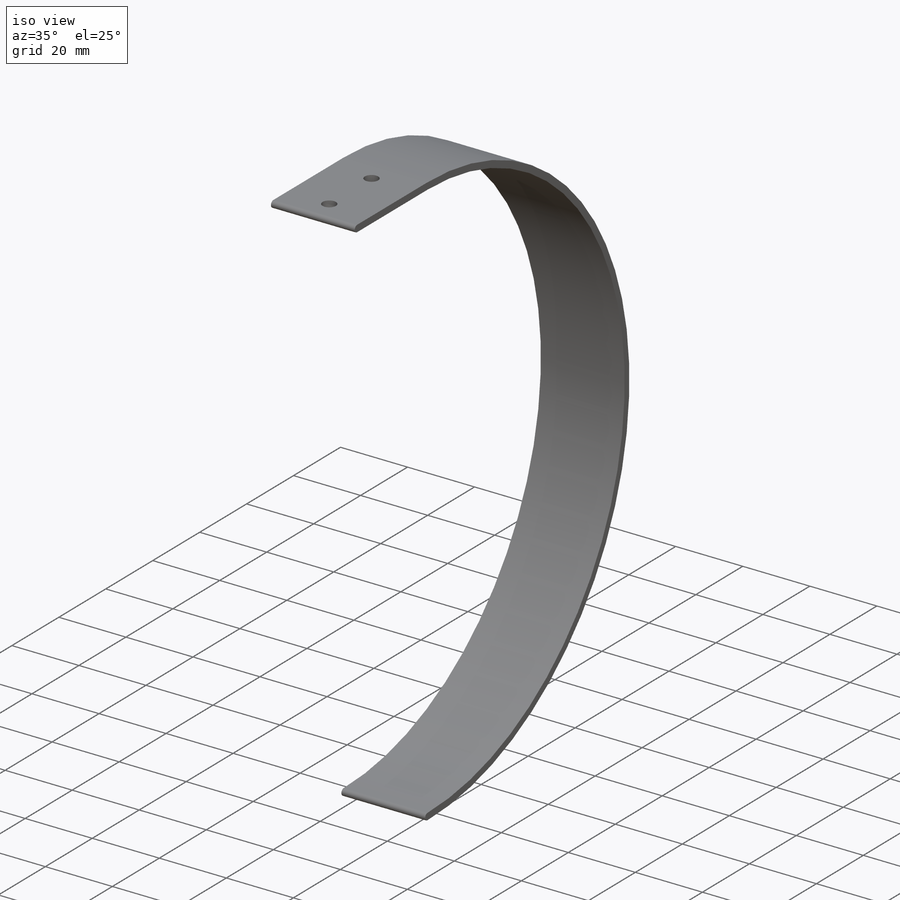
[diagram: iso view]
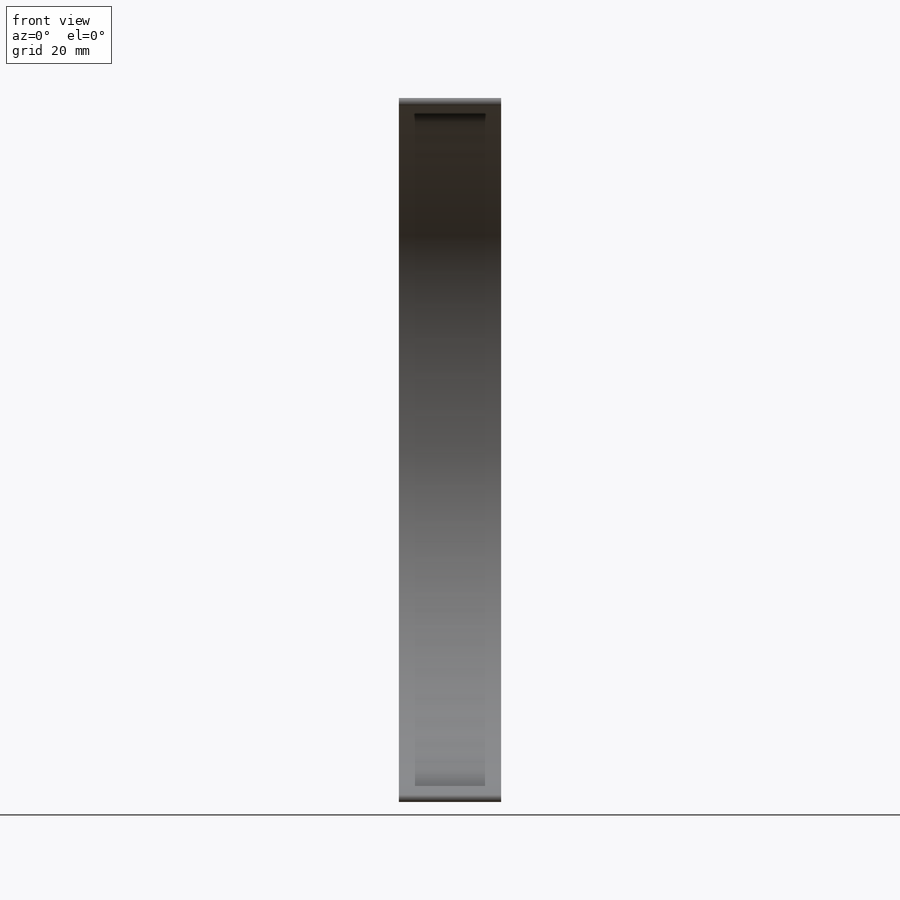
[diagram: front view]
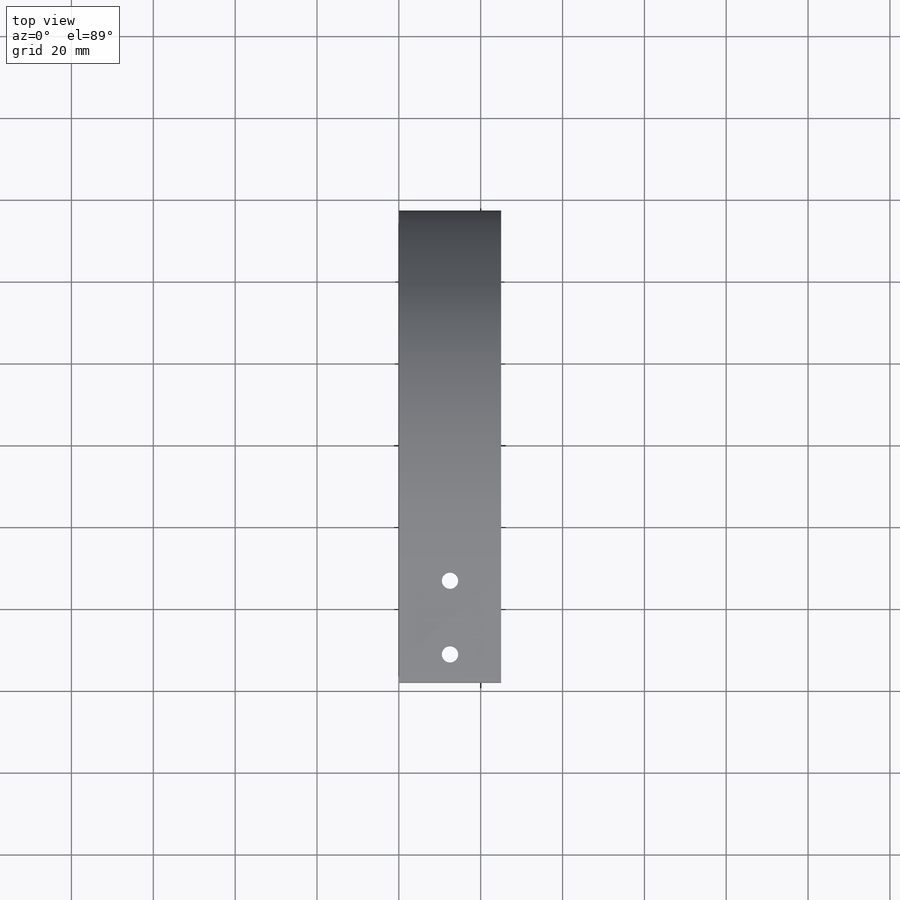
[diagram: top view]
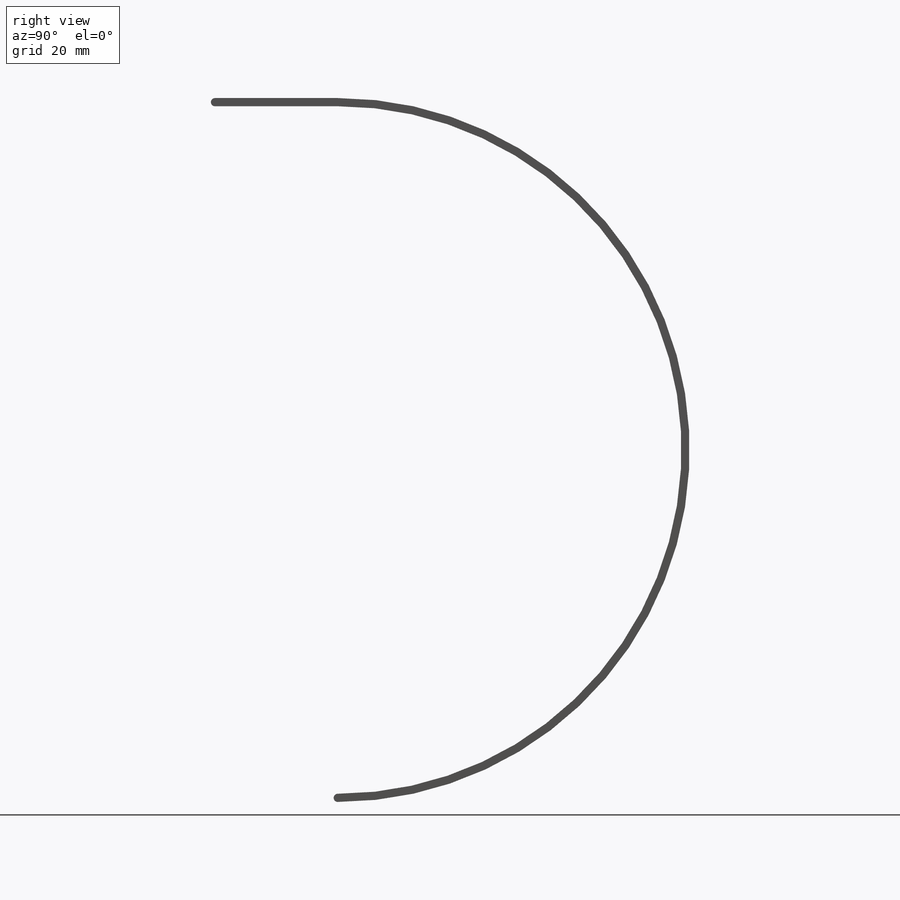
[diagram: right view]
SOLIDWORKS PART (.sldprt)
format: sldprt  version: not decoded by parser v0  size: 166,400 bytes
history: native  units: mm
features: sketch x3, material x1, extrude x1, hole x1 (+12 scaffold rows collapsed)
feature tree (18):
  scaffold x12  (default folders/planes/origin — collapsed)
  material  "S-Glass Fiber"
  sketch  "Sketch1"  dims[c1.D1=170.0mm c1.D3=85.0mm c1.D4=85.0mm c1.D5=89.0mm c1.D2=30.0mm c2.D1=1.0mm c2.D3=1.0mm]
  extrude  "Boss-Extrude1"  Depth=25mm
  hole  "Ø4.0mm Dowel Hole1"  Diameter=4mm Depth=17.29mm
  sketch  "Sketch3"  dims[c1.D1=12.5mm c1.D2=23.0mm c2.D1=18.0mm c2.D2=6.0mm]
  sketch  "Sketch2"  dims[hole-wizard template sketch: 47 standard entries collapsed; hole parameters kept: c15.Hole Depth=17.29mm c15.D3=~14.816244mm c15.Drill Angle=118.0deg]
decode coverage: 5 of 5 modeling features carry decoded parameters
note: ~ marks probable driven/reference dimensions
note: suppression state not decoded; provenance and decode notes live in map.json
